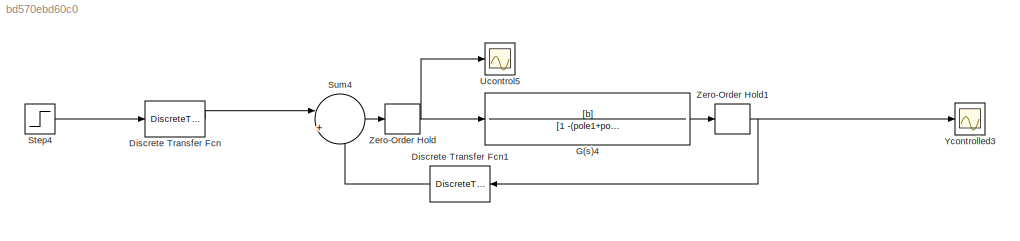
MODEL slx_bd570ebd60c0
KIND model
CONFIG AbsTol = auto
CONFIG EnableMultiTasking = off
CONFIG FixedStep = auto
CONFIG MaxStep = auto
CONFIG MinStep = auto
CONFIG RelTol = 1e-3
CONFIG SampleTimeConstraint = Unconstrained
CONFIG Solver = VariableStepAuto
CONFIG SolverName = VariableStepAuto
CONFIG StartTime = 0.0
CONFIG StopTime = 2
BLOCK [DiscreteTransferFcn] Discrete Transfer Fcn
  Denominator = rd
  InputPortMap = u0
  Numerator = td
  Ports = [1, 1]
  SampleTime = Ts
BLOCK [DiscreteTransferFcn] Discrete Transfer Fcn1
  Denominator = rd
  InputPortMap = u0
  Numerator = sd
  Ports = [1, 1]
  SampleTime = Ts
BLOCK [TransferFcn] G(s)4
  Denominator = [1 -(pole1+pole2) pole1*pole2]
  Numerator = [b]
BLOCK [Step] Step4
BLOCK [Sum] Sum4
  IconShape = round
  InputSameDT = off
  Inputs = |+-
  OutDataTypeStr = Inherit: Inherit via internal rule
  Ports = [2, 1]
  SaturateOnIntegerOverflow = off
BLOCK [Scope] Ucontrol5
  Floating = off
  NumInputPorts = 1
  Ports = [1]
  ScopeSpecificationString = Simulink.scopes.TimeScopeBlockCfg('CurrentConfiguration', extmgr.ConfigurationSet(extmgr.Configuration('Core','General UI',true),extmgr.Configuration('Core','Source UI',true),extmgr.Configuration('Sources','WiredSimulink',true,'DataLoggingVariableName','ScopeData3'),extmgr.Configuration('Visuals','Time Domain',true,'SerializedDisplays',{struct('MinYLimReal','-1845.61759','MaxYLimReal','501.3583','...<+1410ch>
BLOCK [Scope] Ycontrolled3
  Floating = off
  NumInputPorts = 1
  Ports = [1]
  ScopeSpecificationString = Simulink.scopes.TimeScopeBlockCfg('CurrentConfiguration', extmgr.ConfigurationSet(extmgr.Configuration('Core','General UI',true,'FigureColor',[1 1 1]),extmgr.Configuration('Core','Source UI',true),extmgr.Configuration('Sources','WiredSimulink',true,'DataLoggingVariableName','ScopeData4'),extmgr.Configuration('Visuals','Time Domain',true,'SerializedDisplays',{struct('MinYLimReal','-0.13283','MaxYLi...<+1574ch>
BLOCK [ZeroOrderHold] Zero-Order Hold
  SampleTime = Ts
BLOCK [ZeroOrderHold] Zero-Order Hold1
  SampleTime = Ts
LINE Discrete Transfer Fcn1:1 -> Sum4:2
LINE Discrete Transfer Fcn:1 -> Sum4:1
LINE G(s)4:1 -> Zero-Order Hold1:1
LINE Step4:1 -> Discrete Transfer Fcn:1
LINE Sum4:1 -> Zero-Order Hold:1
NET Zero-Order Hold1:1 -> Discrete Transfer Fcn1:1, Ycontrolled3:1
NET Zero-Order Hold:1 -> G(s)4:1, Ucontrol5:1
note: NET lines group one-source signal fan-out (src -> all destinations, sorted); 1:1 wires keep LINE
